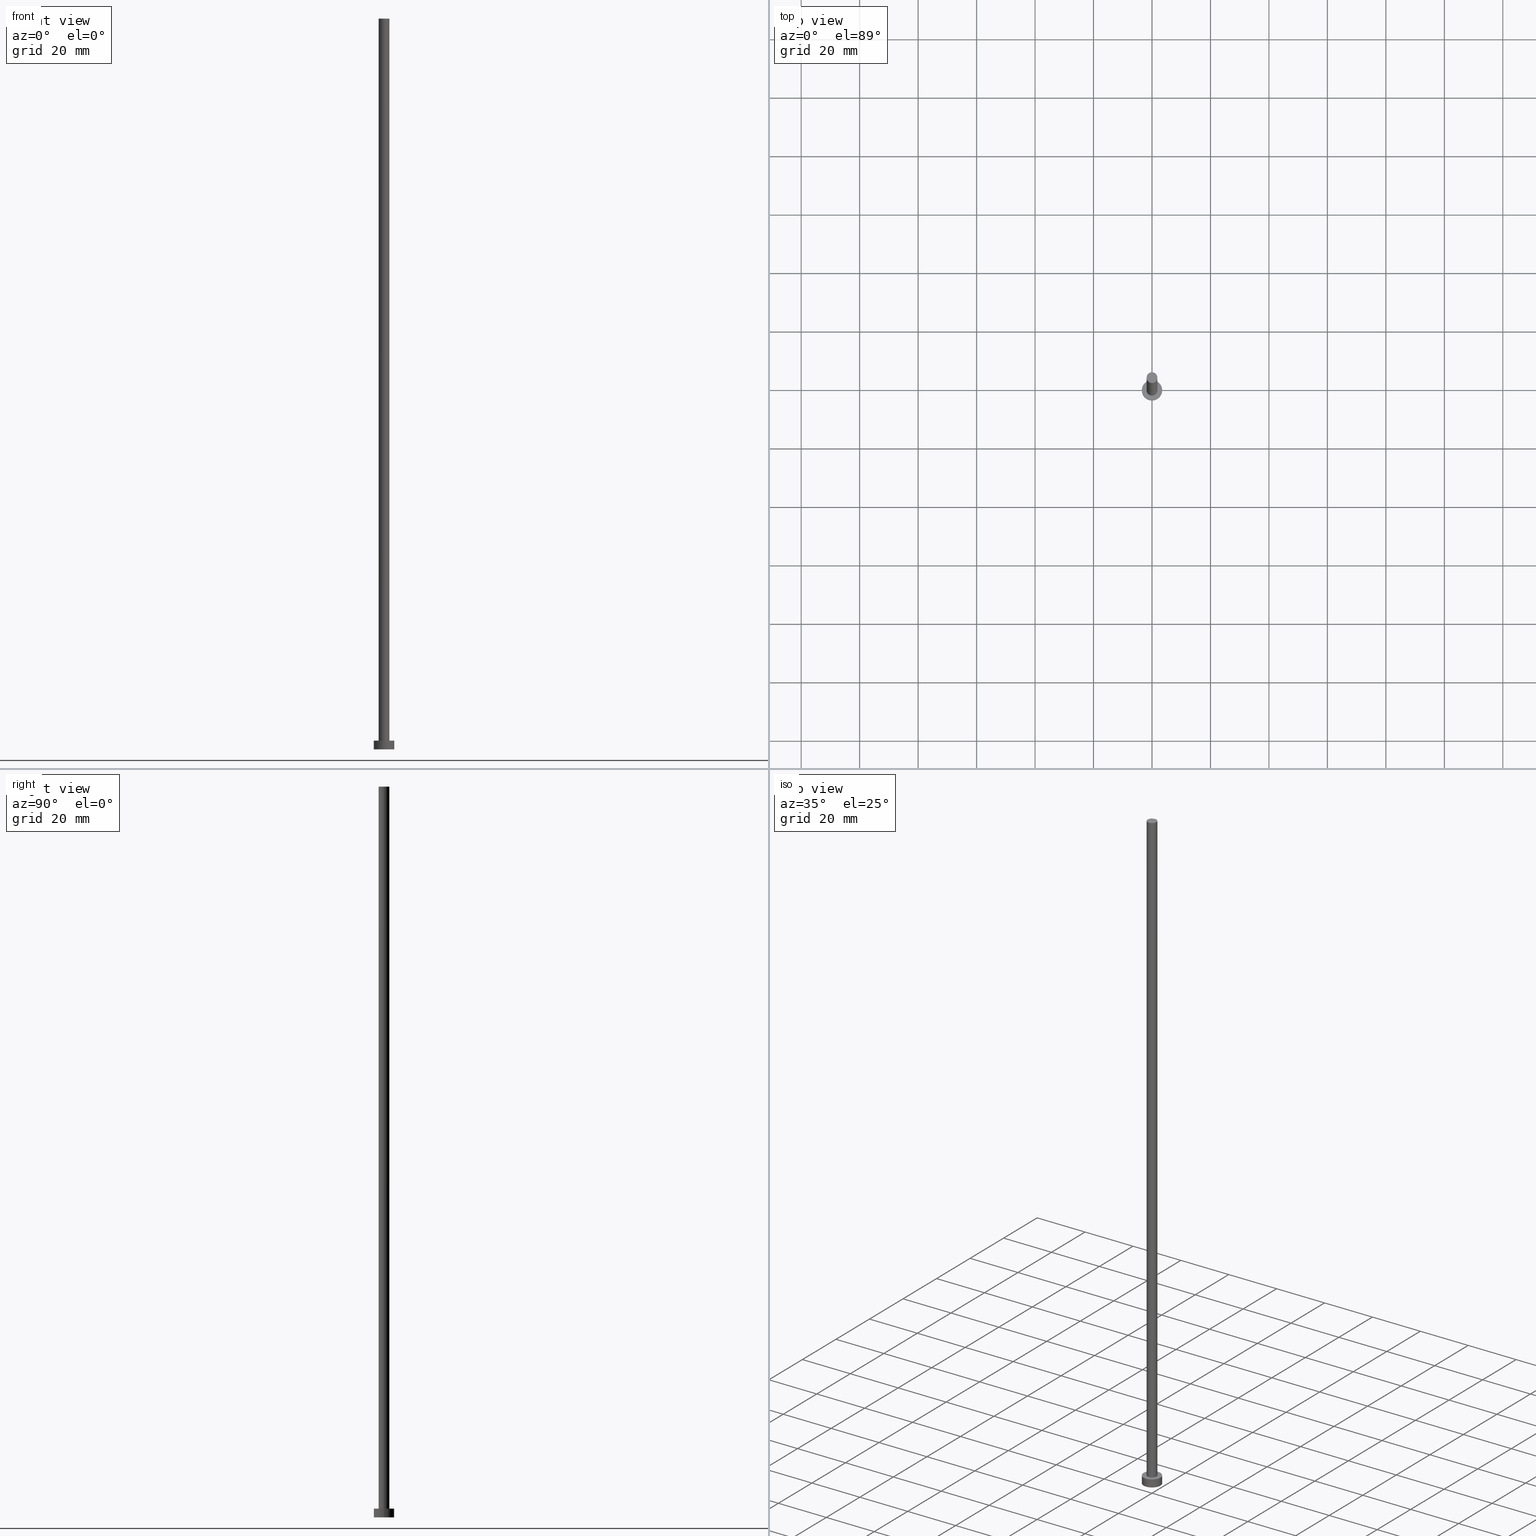
[diagram: canonical four-view strip — front | top / right | iso, engineering-drawing reading convention]
A machine part, canonical four-view strip (front | top / right | iso — engineering-drawing reading convention). The complete STEP part file that produces these views, byte-faithful:
ISO-10303-21;
HEADER;
FILE_DESCRIPTION (( 'STEP AP203' ),
    '1' );
FILE_NAME ('f1e2.STEP',
    '2026-02-11T15:50:51',
    ( '' ),
    ( '' ),
    'SwSTEP 2.0',
    'SolidWorks 2019',
    '' );
FILE_SCHEMA (( 'CONFIG_CONTROL_DESIGN' ));
ENDSEC;

DATA;
#1 = CIRCLE ( 'NONE', #184, 3.500000000000000444 ) ;
#2 = VERTEX_POINT ( 'NONE', #35 ) ;
#3 = VERTEX_POINT ( 'NONE', #242 ) ;
#4 = ORIENTED_EDGE ( 'NONE', *, *, #46, .F. ) ;
#5 = DIRECTION ( 'NONE',  ( 0.000000000000000000, 0.000000000000000000, 1.000000000000000000 ) ) ;
#6 = EDGE_CURVE ( 'NONE', #81, #2, #159, .T. ) ;
#7 = VECTOR ( 'NONE', #66, 1000.000000000000000 ) ;
#8 = LOCAL_TIME ( 16, 50, 51.00000000000000000, #147 ) ;
#9 = DIRECTION ( 'NONE',  ( -0.000000000000000000, -0.000000000000000000, -1.000000000000000000 ) ) ;
#10 = PERSON_AND_ORGANIZATION_ROLE ( 'creator' ) ;
#11 = AXIS2_PLACEMENT_3D ( 'NONE', #247, #224, #186 ) ;
#12 = DIRECTION ( 'NONE',  ( -1.000000000000000000, 0.000000000000000000, 0.000000000000000000 ) ) ;
#13 = EDGE_CURVE ( 'NONE', #79, #199, #162, .T. ) ;
#14 = DIRECTION ( 'NONE',  ( 1.000000000000000000, 0.000000000000000000, 0.000000000000000000 ) ) ;
#15 = CALENDAR_DATE ( 2026, 11, 2 ) ;
#16 =( NAMED_UNIT ( * ) SI_UNIT ( $, .STERADIAN. ) SOLID_ANGLE_UNIT ( ) );
#17 = ORGANIZATION ( 'NEUR�EN�', 'NEUR�EN�', '' ) ;
#18 = VERTEX_POINT ( 'NONE', #138 ) ;
#19 = ORIENTED_EDGE ( 'NONE', *, *, #154, .T. ) ;
#20 = FACE_OUTER_BOUND ( 'NONE', #124, .T. ) ;
#21 = DIRECTION ( 'NONE',  ( 1.000000000000000000, 0.000000000000000000, 0.000000000000000000 ) ) ;
#22 = CIRCLE ( 'NONE', #182, 1.850000000000000089 ) ;
#23 = EDGE_LOOP ( 'NONE', ( #38, #77, #174, #176 ) ) ;
#24 = PRODUCT_DEFINITION ( 'NEZN�M�', '', #80, #54 ) ;
#25 = CARTESIAN_POINT ( 'NONE',  ( 0.000000000000000000, 0.000000000000000000, 0.000000000000000000 ) ) ;
#26 = CARTESIAN_POINT ( 'NONE',  ( 1.850000000000000089, 2.265596578422603100E-16, 250.0000000000000000 ) ) ;
#27 = PERSON_AND_ORGANIZATION ( #69, #17 ) ;
#28 = CARTESIAN_POINT ( 'NONE',  ( -1.850000000000000089, 0.000000000000000000, 250.0000000000000000 ) ) ;
#29 = LINE ( 'NONE', #28, #7 ) ;
#30 = CALENDAR_DATE ( 2026, 11, 2 ) ;
#31 = ORIENTED_EDGE ( 'NONE', *, *, #163, .F. ) ;
#32 = LOCAL_TIME ( 16, 50, 51.00000000000000000, #187 ) ;
#33 = EDGE_CURVE ( 'NONE', #2, #81, #88, .T. ) ;
#34 = ORIENTED_EDGE ( 'NONE', *, *, #222, .F. ) ;
#35 = CARTESIAN_POINT ( 'NONE',  ( 1.850000000000000089, 2.265596578422603100E-16, 3.000000000000000000 ) ) ;
#36 = ORIENTED_EDGE ( 'NONE', *, *, #163, .T. ) ;
#37 = CARTESIAN_POINT ( 'NONE',  ( 0.000000000000000000, 0.000000000000000000, 3.000000000000000000 ) ) ;
#38 = ORIENTED_EDGE ( 'NONE', *, *, #95, .F. ) ;
#39 = CARTESIAN_POINT ( 'NONE',  ( 0.000000000000000000, 0.000000000000000000, 250.0000000000000000 ) ) ;
#40 = AXIS2_PLACEMENT_3D ( 'NONE', #204, #150, #226 ) ;
#41 = ORIENTED_EDGE ( 'NONE', *, *, #185, .F. ) ;
#42 = ORIENTED_EDGE ( 'NONE', *, *, #222, .T. ) ;
#43 = LOCAL_TIME ( 16, 50, 51.00000000000000000, #248 ) ;
#44 = CC_DESIGN_PERSON_AND_ORGANIZATION_ASSIGNMENT ( #167, #10, ( #80 ) ) ;
#45 = PLANE ( 'NONE',  #11 ) ;
#46 = EDGE_CURVE ( 'NONE', #3, #195, #231, .T. ) ;
#47 = CARTESIAN_POINT ( 'NONE',  ( -1.850000000000000089, 0.000000000000000000, 250.0000000000000000 ) ) ;
#48 = PERSON_AND_ORGANIZATION_ROLE ( 'classification_officer' ) ;
#49 = CYLINDRICAL_SURFACE ( 'NONE', #205, 3.500000000000000444 ) ;
#50 = AXIS2_PLACEMENT_3D ( 'NONE', #37, #142, #140 ) ;
#51 = CARTESIAN_POINT ( 'NONE',  ( -3.500000000000000444, 0.000000000000000000, 3.000000000000000000 ) ) ;
#52 = CC_DESIGN_DATE_AND_TIME_ASSIGNMENT ( #254, #227, ( #24 ) ) ;
#53 = DATE_TIME_ROLE ( 'classification_date' ) ;
#54 = DESIGN_CONTEXT ( 'detailed design', #96, 'design' ) ;
#55 = PLANE ( 'NONE',  #137 ) ;
#56 = EDGE_CURVE ( 'NONE', #199, #79, #117, .T. ) ;
#57 = DIRECTION ( 'NONE',  ( 1.000000000000000000, 0.000000000000000000, 0.000000000000000000 ) ) ;
#58 = ORIENTED_EDGE ( 'NONE', *, *, #154, .F. ) ;
#59 = DIRECTION ( 'NONE',  ( 0.000000000000000000, 0.000000000000000000, 1.000000000000000000 ) ) ;
#60 = PRODUCT_DEFINITION_SHAPE ( 'NONE', 'NONE',  #24 ) ;
#61 = DIRECTION ( 'NONE',  ( 0.000000000000000000, 0.000000000000000000, 1.000000000000000000 ) ) ;
#62 = ADVANCED_FACE ( 'NONE', ( #178 ), #55, .T. ) ;
#63 = DIRECTION ( 'NONE',  ( -0.000000000000000000, -0.000000000000000000, -1.000000000000000000 ) ) ;
#64 = FACE_OUTER_BOUND ( 'NONE', #23, .T. ) ;
#65 = PERSON_AND_ORGANIZATION ( #69, #17 ) ;
#66 = DIRECTION ( 'NONE',  ( -0.000000000000000000, -0.000000000000000000, -1.000000000000000000 ) ) ;
#67 = APPROVAL_ROLE ( '' ) ;
#68 = LINE ( 'NONE', #166, #188 ) ;
#69 = PERSON ( 'NEUR�EN�', 'NEUR�EN�', 'NEUR�EN�', ('NEUR�EN�'), ('NEUR�EN�'), ('NEUR�EN�') ) ;
#70 = COORDINATED_UNIVERSAL_TIME_OFFSET ( 1, 0, .AHEAD. ) ;
#71 = CC_DESIGN_PERSON_AND_ORGANIZATION_ASSIGNMENT ( #230, #91, ( #80 ) ) ;
#72 = SECURITY_CLASSIFICATION_LEVEL ( 'unclassified' ) ;
#73 = AXIS2_PLACEMENT_3D ( 'NONE', #161, #92, #229 ) ;
#74 = UNCERTAINTY_MEASURE_WITH_UNIT (LENGTH_MEASURE( 1.000000000000000082E-05 ), #103, 'distance_accuracy_value', 'NONE');
#75 = ADVANCED_FACE ( 'NONE', ( #20 ), #116, .F. ) ;
#76 = AXIS2_PLACEMENT_3D ( 'NONE', #253, #110, #12 ) ;
#77 = ORIENTED_EDGE ( 'NONE', *, *, #185, .T. ) ;
#78 = ORIENTED_EDGE ( 'NONE', *, *, #87, .T. ) ;
#79 = VERTEX_POINT ( 'NONE', #101 ) ;
#80 = PRODUCT_DEFINITION_FORMATION_WITH_SPECIFIED_SOURCE ( 'LIBOVOLN�', '', #220, .NOT_KNOWN. ) ;
#81 = VERTEX_POINT ( 'NONE', #157 ) ;
#82 = APPROVAL ( #145, 'NEUR�EN�' ) ;
#83 = CARTESIAN_POINT ( 'NONE',  ( 0.000000000000000000, 0.000000000000000000, 3.000000000000000000 ) ) ;
#84 = APPROVAL_PERSON_ORGANIZATION ( #65, #82, #67 ) ;
#85 = DIRECTION ( 'NONE',  ( 1.000000000000000000, 0.000000000000000000, 0.000000000000000000 ) ) ;
#86 = CC_DESIGN_APPROVAL ( #126, ( #80 ) ) ;
#87 = EDGE_CURVE ( 'NONE', #196, #18, #22, .T. ) ;
#88 = CIRCLE ( 'NONE', #179, 1.850000000000000089 ) ;
#89 = CARTESIAN_POINT ( 'NONE',  ( 3.500000000000000444, 4.286263797015737088E-16, 0.000000000000000000 ) ) ;
#90 = FACE_OUTER_BOUND ( 'NONE', #177, .T. ) ;
#91 = PERSON_AND_ORGANIZATION_ROLE ( 'design_supplier' ) ;
#92 = DIRECTION ( 'NONE',  ( -0.000000000000000000, -0.000000000000000000, -1.000000000000000000 ) ) ;
#93 = DATE_AND_TIME ( #15, #221 ) ;
#94 = PERSON_AND_ORGANIZATION_ROLE ( 'design_owner' ) ;
#95 = EDGE_CURVE ( 'NONE', #18, #196, #203, .T. ) ;
#96 = APPLICATION_CONTEXT ( 'configuration controlled 3d designs of mechanical parts and assemblies' ) ;
#97 = EDGE_LOOP ( 'NONE', ( #41, #114, #100, #156 ) ) ;
#98 = MANIFOLD_SOLID_BREP ( 'P�idat vysunut�m3', #113 ) ;
#99 = CARTESIAN_POINT ( 'NONE',  ( 0.000000000000000000, 0.000000000000000000, 250.0000000000000000 ) ) ;
#100 = ORIENTED_EDGE ( 'NONE', *, *, #212, .T. ) ;
#101 = CARTESIAN_POINT ( 'NONE',  ( 3.500000000000000444, 4.286263797015737088E-16, 3.000000000000000000 ) ) ;
#102 = ORIENTED_EDGE ( 'NONE', *, *, #13, .F. ) ;
#103 =( LENGTH_UNIT ( ) NAMED_UNIT ( * ) SI_UNIT ( .MILLI., .METRE. ) );
#104 = DIRECTION ( 'NONE',  ( -1.000000000000000000, 0.000000000000000000, 0.000000000000000000 ) ) ;
#105 = APPROVAL_STATUS ( 'not_yet_approved' ) ;
#106 = CYLINDRICAL_SURFACE ( 'NONE', #40, 1.850000000000000089 ) ;
#107 = MECHANICAL_CONTEXT ( 'NONE', #215, 'mechanical' ) ;
#108 = FACE_OUTER_BOUND ( 'NONE', #122, .T. ) ;
#109 = APPROVAL_STATUS ( 'not_yet_approved' ) ;
#110 = DIRECTION ( 'NONE',  ( -0.000000000000000000, -0.000000000000000000, -1.000000000000000000 ) ) ;
#111 = CARTESIAN_POINT ( 'NONE',  ( 0.000000000000000000, 0.000000000000000000, 0.000000000000000000 ) ) ;
#112 = CC_DESIGN_APPROVAL ( #201, ( #240 ) ) ;
#113 = CLOSED_SHELL ( 'NONE', ( #131, #252, #251, #118, #75, #173, #62 ) ) ;
#114 = ORIENTED_EDGE ( 'NONE', *, *, #87, .F. ) ;
#115 = EDGE_LOOP ( 'NONE', ( #78, #141 ) ) ;
#116 = PLANE ( 'NONE',  #151 ) ;
#117 = CIRCLE ( 'NONE', #125, 3.500000000000000444 ) ;
#118 = ADVANCED_FACE ( 'NONE', ( #183, #108 ), #45, .T. ) ;
#119 = DIRECTION ( 'NONE',  ( 0.000000000000000000, 0.000000000000000000, 1.000000000000000000 ) ) ;
#120 = ORIENTED_EDGE ( 'NONE', *, *, #46, .T. ) ;
#121 = ORIENTED_EDGE ( 'NONE', *, *, #56, .F. ) ;
#122 = EDGE_LOOP ( 'NONE', ( #214, #202 ) ) ;
#123 = APPROVAL_PERSON_ORGANIZATION ( #233, #126, #136 ) ;
#124 = EDGE_LOOP ( 'NONE', ( #4, #31 ) ) ;
#125 = AXIS2_PLACEMENT_3D ( 'NONE', #244, #61, #218 ) ;
#126 = APPROVAL ( #105, 'NEUR�EN�' ) ;
#127 = DIRECTION ( 'NONE',  ( 1.000000000000000000, 0.000000000000000000, 0.000000000000000000 ) ) ;
#128 = APPROVAL_DATE_TIME ( #135, #126 ) ;
#129 = LINE ( 'NONE', #144, #235 ) ;
#130 = CALENDAR_DATE ( 2026, 11, 2 ) ;
#131 = ADVANCED_FACE ( 'NONE', ( #64 ), #249, .T. ) ;
#132 = DIRECTION ( 'NONE',  ( 1.000000000000000000, 0.000000000000000000, 0.000000000000000000 ) ) ;
#133 = APPLICATION_PROTOCOL_DEFINITION ( 'international standard', 'config_control_design', 1994, #215 ) ;
#134 = DIRECTION ( 'NONE',  ( -0.000000000000000000, -0.000000000000000000, -1.000000000000000000 ) ) ;
#135 = DATE_AND_TIME ( #255, #32 ) ;
#136 = APPROVAL_ROLE ( '' ) ;
#137 = AXIS2_PLACEMENT_3D ( 'NONE', #99, #153, #139 ) ;
#138 = CARTESIAN_POINT ( 'NONE',  ( 1.850000000000000089, 2.265596578422603100E-16, 250.0000000000000000 ) ) ;
#139 = DIRECTION ( 'NONE',  ( 1.000000000000000000, 0.000000000000000000, -0.000000000000000000 ) ) ;
#140 = DIRECTION ( 'NONE',  ( 1.000000000000000000, 0.000000000000000000, 0.000000000000000000 ) ) ;
#141 = ORIENTED_EDGE ( 'NONE', *, *, #95, .T. ) ;
#142 = DIRECTION ( 'NONE',  ( 0.000000000000000000, 0.000000000000000000, 1.000000000000000000 ) ) ;
#143 = VECTOR ( 'NONE', #9, 1000.000000000000000 ) ;
#144 = CARTESIAN_POINT ( 'NONE',  ( 3.500000000000000444, 4.286263797015737088E-16, 3.000000000000000000 ) ) ;
#145 = APPROVAL_STATUS ( 'not_yet_approved' ) ;
#146 = DIRECTION ( 'NONE',  ( -0.000000000000000000, -0.000000000000000000, -1.000000000000000000 ) ) ;
#147 = COORDINATED_UNIVERSAL_TIME_OFFSET ( 1, 0, .AHEAD. ) ;
#148 = FACE_OUTER_BOUND ( 'NONE', #237, .T. ) ;
#149 = DATE_AND_TIME ( #207, #181 ) ;
#150 = DIRECTION ( 'NONE',  ( -0.000000000000000000, -0.000000000000000000, -1.000000000000000000 ) ) ;
#151 = AXIS2_PLACEMENT_3D ( 'NONE', #216, #119, #198 ) ;
#152 = PERSON_AND_ORGANIZATION ( #69, #17 ) ;
#153 = DIRECTION ( 'NONE',  ( 0.000000000000000000, 0.000000000000000000, 1.000000000000000000 ) ) ;
#154 = EDGE_CURVE ( 'NONE', #199, #3, #68, .T. ) ;
#155 = DIRECTION ( 'NONE',  ( 0.000000000000000000, 0.000000000000000000, 1.000000000000000000 ) ) ;
#156 = ORIENTED_EDGE ( 'NONE', *, *, #6, .T. ) ;
#157 = CARTESIAN_POINT ( 'NONE',  ( -1.850000000000000089, 0.000000000000000000, 3.000000000000000000 ) ) ;
#158 = DIRECTION ( 'NONE',  ( 1.000000000000000000, 0.000000000000000000, 0.000000000000000000 ) ) ;
#159 = CIRCLE ( 'NONE', #50, 1.850000000000000089 ) ;
#160 = CC_DESIGN_PERSON_AND_ORGANIZATION_ASSIGNMENT ( #27, #170, ( #24 ) ) ;
#161 = CARTESIAN_POINT ( 'NONE',  ( 0.000000000000000000, 0.000000000000000000, 3.000000000000000000 ) ) ;
#162 = CIRCLE ( 'NONE', #246, 3.500000000000000444 ) ;
#163 = EDGE_CURVE ( 'NONE', #195, #3, #1, .T. ) ;
#164 = CC_DESIGN_APPROVAL ( #82, ( #24 ) ) ;
#165 = DIRECTION ( 'NONE',  ( 0.000000000000000000, 0.000000000000000000, 1.000000000000000000 ) ) ;
#166 = CARTESIAN_POINT ( 'NONE',  ( -3.500000000000000444, 0.000000000000000000, 3.000000000000000000 ) ) ;
#167 = PERSON_AND_ORGANIZATION ( #69, #17 ) ;
#168 =( NAMED_UNIT ( * ) PLANE_ANGLE_UNIT ( ) SI_UNIT ( $, .RADIAN. ) );
#169 = APPROVAL_PERSON_ORGANIZATION ( #152, #201, #192 ) ;
#170 = PERSON_AND_ORGANIZATION_ROLE ( 'creator' ) ;
#171 = APPROVAL_DATE_TIME ( #209, #82 ) ;
#172 = CC_DESIGN_DATE_AND_TIME_ASSIGNMENT ( #149, #53, ( #240 ) ) ;
#173 = ADVANCED_FACE ( 'NONE', ( #191 ), #106, .T. ) ;
#174 = ORIENTED_EDGE ( 'NONE', *, *, #33, .T. ) ;
#175 = ORIENTED_EDGE ( 'NONE', *, *, #6, .F. ) ;
#176 = ORIENTED_EDGE ( 'NONE', *, *, #212, .F. ) ;
#177 = EDGE_LOOP ( 'NONE', ( #102, #42, #36, #58 ) ) ;
#178 = FACE_OUTER_BOUND ( 'NONE', #115, .T. ) ;
#179 = AXIS2_PLACEMENT_3D ( 'NONE', #83, #155, #158 ) ;
#180 = CARTESIAN_POINT ( 'NONE',  ( 0.000000000000000000, 0.000000000000000000, 3.000000000000000000 ) ) ;
#181 = LOCAL_TIME ( 16, 50, 51.00000000000000000, #250 ) ;
#182 = AXIS2_PLACEMENT_3D ( 'NONE', #39, #200, #21 ) ;
#183 = FACE_BOUND ( 'NONE', #219, .T. ) ;
#184 = AXIS2_PLACEMENT_3D ( 'NONE', #25, #206, #127 ) ;
#185 = EDGE_CURVE ( 'NONE', #18, #2, #232, .T. ) ;
#186 = DIRECTION ( 'NONE',  ( 1.000000000000000000, 0.000000000000000000, -0.000000000000000000 ) ) ;
#187 = COORDINATED_UNIVERSAL_TIME_OFFSET ( 1, 0, .AHEAD. ) ;
#188 = VECTOR ( 'NONE', #146, 1000.000000000000000 ) ;
#189 = CYLINDRICAL_SURFACE ( 'NONE', #73, 3.500000000000000444 ) ;
#190 = PERSON_AND_ORGANIZATION ( #69, #17 ) ;
#191 = FACE_OUTER_BOUND ( 'NONE', #97, .T. ) ;
#192 = APPROVAL_ROLE ( '' ) ;
#193 = PERSON_AND_ORGANIZATION ( #69, #17 ) ;
#194 =( GEOMETRIC_REPRESENTATION_CONTEXT ( 3 ) GLOBAL_UNCERTAINTY_ASSIGNED_CONTEXT ( ( #74 ) ) GLOBAL_UNIT_ASSIGNED_CONTEXT ( ( #103, #168, #16 ) ) REPRESENTATION_CONTEXT ( 'NONE', 'WORKASPACE' ) );
#195 = VERTEX_POINT ( 'NONE', #89 ) ;
#196 = VERTEX_POINT ( 'NONE', #47 ) ;
#197 = ORIENTED_EDGE ( 'NONE', *, *, #33, .F. ) ;
#198 = DIRECTION ( 'NONE',  ( 1.000000000000000000, 0.000000000000000000, -0.000000000000000000 ) ) ;
#199 = VERTEX_POINT ( 'NONE', #51 ) ;
#200 = DIRECTION ( 'NONE',  ( 0.000000000000000000, 0.000000000000000000, 1.000000000000000000 ) ) ;
#201 = APPROVAL ( #109, 'NEUR�EN�' ) ;
#202 = ORIENTED_EDGE ( 'NONE', *, *, #13, .T. ) ;
#203 = CIRCLE ( 'NONE', #236, 1.850000000000000089 ) ;
#204 = CARTESIAN_POINT ( 'NONE',  ( 0.000000000000000000, 0.000000000000000000, 250.0000000000000000 ) ) ;
#205 = AXIS2_PLACEMENT_3D ( 'NONE', #208, #63, #104 ) ;
#206 = DIRECTION ( 'NONE',  ( 0.000000000000000000, 0.000000000000000000, 1.000000000000000000 ) ) ;
#207 = CALENDAR_DATE ( 2026, 11, 2 ) ;
#208 = CARTESIAN_POINT ( 'NONE',  ( 0.000000000000000000, 0.000000000000000000, 3.000000000000000000 ) ) ;
#209 = DATE_AND_TIME ( #130, #43 ) ;
#210 = SHAPE_DEFINITION_REPRESENTATION ( #60, #238 ) ;
#211 = AXIS2_PLACEMENT_3D ( 'NONE', #213, #239, #57 ) ;
#212 = EDGE_CURVE ( 'NONE', #196, #81, #29, .T. ) ;
#213 = CARTESIAN_POINT ( 'NONE',  ( 0.000000000000000000, 0.000000000000000000, 0.000000000000000000 ) ) ;
#214 = ORIENTED_EDGE ( 'NONE', *, *, #56, .T. ) ;
#215 = APPLICATION_CONTEXT ( 'configuration controlled 3d designs of mechanical parts and assemblies' ) ;
#216 = CARTESIAN_POINT ( 'NONE',  ( 0.000000000000000000, 0.000000000000000000, 0.000000000000000000 ) ) ;
#217 = CC_DESIGN_PERSON_AND_ORGANIZATION_ASSIGNMENT ( #193, #94, ( #220 ) ) ;
#218 = DIRECTION ( 'NONE',  ( 1.000000000000000000, 0.000000000000000000, 0.000000000000000000 ) ) ;
#219 = EDGE_LOOP ( 'NONE', ( #175, #197 ) ) ;
#220 = PRODUCT ( 'f1e2', 'f1e2', '', ( #107 ) ) ;
#221 = LOCAL_TIME ( 16, 50, 51.00000000000000000, #70 ) ;
#222 = EDGE_CURVE ( 'NONE', #79, #195, #129, .T. ) ;
#223 = CC_DESIGN_SECURITY_CLASSIFICATION ( #240, ( #80 ) ) ;
#224 = DIRECTION ( 'NONE',  ( 0.000000000000000000, 0.000000000000000000, 1.000000000000000000 ) ) ;
#225 = APPROVAL_DATE_TIME ( #93, #201 ) ;
#226 = DIRECTION ( 'NONE',  ( -1.000000000000000000, 0.000000000000000000, 0.000000000000000000 ) ) ;
#227 = DATE_TIME_ROLE ( 'creation_date' ) ;
#228 = AXIS2_PLACEMENT_3D ( 'NONE', #111, #165, #14 ) ;
#229 = DIRECTION ( 'NONE',  ( -1.000000000000000000, 0.000000000000000000, 0.000000000000000000 ) ) ;
#230 = PERSON_AND_ORGANIZATION ( #69, #17 ) ;
#231 = CIRCLE ( 'NONE', #211, 3.500000000000000444 ) ;
#232 = LINE ( 'NONE', #26, #143 ) ;
#233 = PERSON_AND_ORGANIZATION ( #69, #17 ) ;
#234 = APPLICATION_PROTOCOL_DEFINITION ( 'international standard', 'config_control_design', 1994, #96 ) ;
#235 = VECTOR ( 'NONE', #134, 1000.000000000000000 ) ;
#236 = AXIS2_PLACEMENT_3D ( 'NONE', #243, #59, #132 ) ;
#237 = EDGE_LOOP ( 'NONE', ( #34, #121, #19, #120 ) ) ;
#238 = ADVANCED_BREP_SHAPE_REPRESENTATION ( 'f1e2', ( #98, #228 ), #194 ) ;
#239 = DIRECTION ( 'NONE',  ( 0.000000000000000000, 0.000000000000000000, 1.000000000000000000 ) ) ;
#240 = SECURITY_CLASSIFICATION ( '', '', #72 ) ;
#241 = PRODUCT_RELATED_PRODUCT_CATEGORY ( 'detail', '', ( #220 ) ) ;
#242 = CARTESIAN_POINT ( 'NONE',  ( -3.500000000000000444, 0.000000000000000000, 0.000000000000000000 ) ) ;
#243 = CARTESIAN_POINT ( 'NONE',  ( 0.000000000000000000, 0.000000000000000000, 250.0000000000000000 ) ) ;
#244 = CARTESIAN_POINT ( 'NONE',  ( 0.000000000000000000, 0.000000000000000000, 3.000000000000000000 ) ) ;
#245 = CC_DESIGN_PERSON_AND_ORGANIZATION_ASSIGNMENT ( #190, #48, ( #240 ) ) ;
#246 = AXIS2_PLACEMENT_3D ( 'NONE', #180, #5, #85 ) ;
#247 = CARTESIAN_POINT ( 'NONE',  ( 0.000000000000000000, 0.000000000000000000, 3.000000000000000000 ) ) ;
#248 = COORDINATED_UNIVERSAL_TIME_OFFSET ( 1, 0, .AHEAD. ) ;
#249 = CYLINDRICAL_SURFACE ( 'NONE', #76, 1.850000000000000089 ) ;
#250 = COORDINATED_UNIVERSAL_TIME_OFFSET ( 1, 0, .AHEAD. ) ;
#251 = ADVANCED_FACE ( 'NONE', ( #148 ), #189, .T. ) ;
#252 = ADVANCED_FACE ( 'NONE', ( #90 ), #49, .T. ) ;
#253 = CARTESIAN_POINT ( 'NONE',  ( 0.000000000000000000, 0.000000000000000000, 250.0000000000000000 ) ) ;
#254 = DATE_AND_TIME ( #30, #8 ) ;
#255 = CALENDAR_DATE ( 2026, 11, 2 ) ;
ENDSEC;
END-ISO-10303-21;
